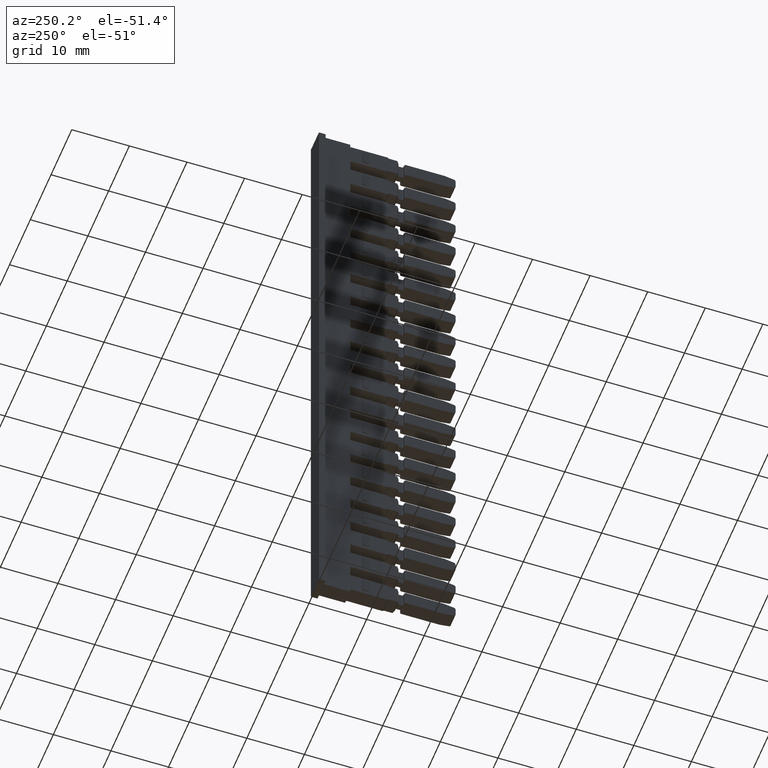
[diagram: clean part render]
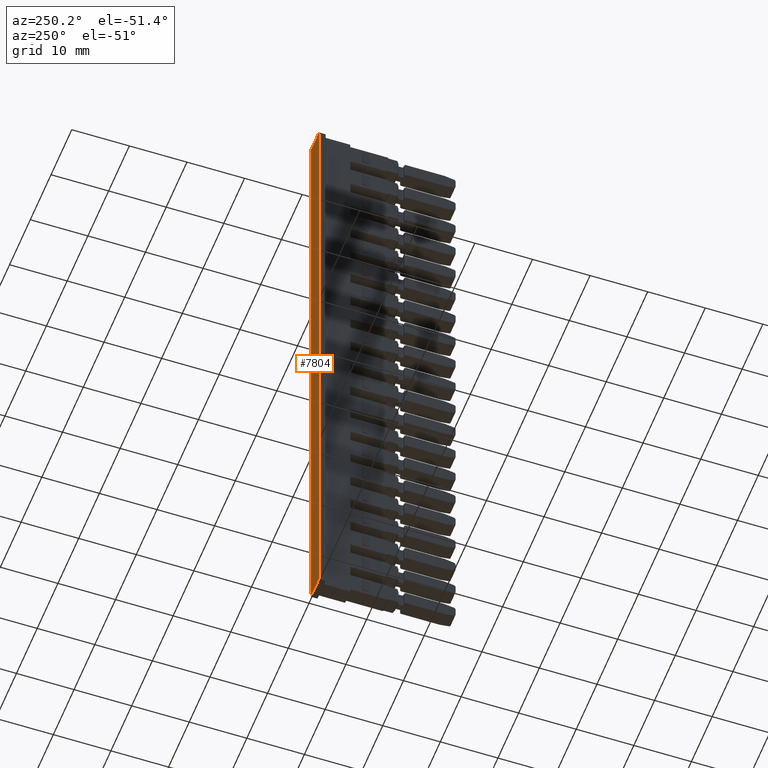
[diagram: same view with one face highlighted and labeled with its STEP entity id]
A machine part, auxiliary view. The second image highlights one B-rep face of the part: STEP entity #7804.
In plain terms, the highlighted planar face has unit normal (-0, 1, 0).
Its self-contained STEP definition (entity closure, byte-faithful):
#91 = EDGE_LOOP ( 'NONE', ( #13417, #13410, #13429, #13411 ) ) ;
#453 = VECTOR ( 'NONE', #19107, 1000.000000000000000 ) ;
#454 = VECTOR ( 'NONE', #19191, 1000.000000000000000 ) ;
#459 = VECTOR ( 'NONE', #19216, 1000.000000000000000 ) ;
#474 = VECTOR ( 'NONE', #19144, 1000.000000000000000 ) ;
#4129 = EDGE_CURVE ( 'NONE', #10394, #10383, #19113, .T. ) ;
#4153 = EDGE_CURVE ( 'NONE', #10394, #10313, #19092, .T. ) ;
#4159 = EDGE_CURVE ( 'NONE', #10314, #10383, #19140, .T. ) ;
#4161 = EDGE_CURVE ( 'NONE', #10314, #10313, #19180, .T. ) ;
#7804 = ADVANCED_FACE ( 'NONE', ( #9636 ), #9638, .T. ) ;
#9627 = DIRECTION ( 'NONE',  ( -2.625242473304434000E-014, 1.000000000000000000, 6.606529101504750500E-015 ) ) ;
#9629 = DIRECTION ( 'NONE',  ( -1.000000000000000000, -2.625242473304434000E-014, 0.0000000000000000000 ) ) ;
#9636 = FACE_OUTER_BOUND ( 'NONE', #91, .T. ) ;
#9638 = PLANE ( 'NONE',  #25579 ) ;
#9640 = CARTESIAN_POINT ( 'NONE',  ( 1459.718071211365900, 1009.692679537520100, -112.3308473691034000 ) ) ;
#10313 = VERTEX_POINT ( 'NONE', #26028 ) ;
#10314 = VERTEX_POINT ( 'NONE', #25982 ) ;
#10383 = VERTEX_POINT ( 'NONE', #26080 ) ;
#10394 = VERTEX_POINT ( 'NONE', #26070 ) ;
#13410 = ORIENTED_EDGE ( 'NONE', *, *, #4153, .F. ) ;
#13411 = ORIENTED_EDGE ( 'NONE', *, *, #4159, .F. ) ;
#13417 = ORIENTED_EDGE ( 'NONE', *, *, #4161, .T. ) ;
#13429 = ORIENTED_EDGE ( 'NONE', *, *, #4129, .T. ) ;
#19092 = LINE ( 'NONE', #19153, #474 ) ;
#19106 = CARTESIAN_POINT ( 'NONE',  ( 1459.968071211366100, 1009.692679537520100, -112.3308473691034000 ) ) ;
#19107 = DIRECTION ( 'NONE',  ( -1.734374079839205100E-028, 6.606529101504750500E-015, -1.000000000000000000 ) ) ;
#19113 = LINE ( 'NONE', #19106, #453 ) ;
#19140 = LINE ( 'NONE', #19205, #454 ) ;
#19144 = DIRECTION ( 'NONE',  ( -1.000000000000000000, 4.794056557034578200E-028, -5.145373498329340500E-015 ) ) ;
#19153 = CARTESIAN_POINT ( 'NONE',  ( 1457.871626077922200, 1009.692679537512000, -77.04999999999265000 ) ) ;
#19180 = LINE ( 'NONE', #19192, #459 ) ;
#19191 = DIRECTION ( 'NONE',  ( 1.000000000000000000, -1.591874026890570400E-028, -1.715124499443520100E-015 ) ) ;
#19192 = CARTESIAN_POINT ( 'NONE',  ( 1456.068071211366000, 1009.692679537520100, -112.3308473691034000 ) ) ;
#19205 = CARTESIAN_POINT ( 'NONE',  ( 1457.871626077922200, 1009.692679537386900, -194.0499999999874500 ) ) ;
#19216 = DIRECTION ( 'NONE',  ( 1.734374079839205100E-028, -6.606529101504750500E-015, 1.000000000000000000 ) ) ;
#25579 = AXIS2_PLACEMENT_3D ( 'NONE', #9640, #9627, #9629 ) ;
#25982 = CARTESIAN_POINT ( 'NONE',  ( 1456.068071211366000, 1009.692679537388800, -194.0499999999874500 ) ) ;
#26028 = CARTESIAN_POINT ( 'NONE',  ( 1456.068071211366000, 1009.692679537514100, -77.04999999999267900 ) ) ;
#26070 = CARTESIAN_POINT ( 'NONE',  ( 1459.968071211366100, 1009.692679537514100, -77.04999999999265000 ) ) ;
#26080 = CARTESIAN_POINT ( 'NONE',  ( 1459.968071211366100, 1009.692679537388800, -194.0499999999874200 ) ) ;